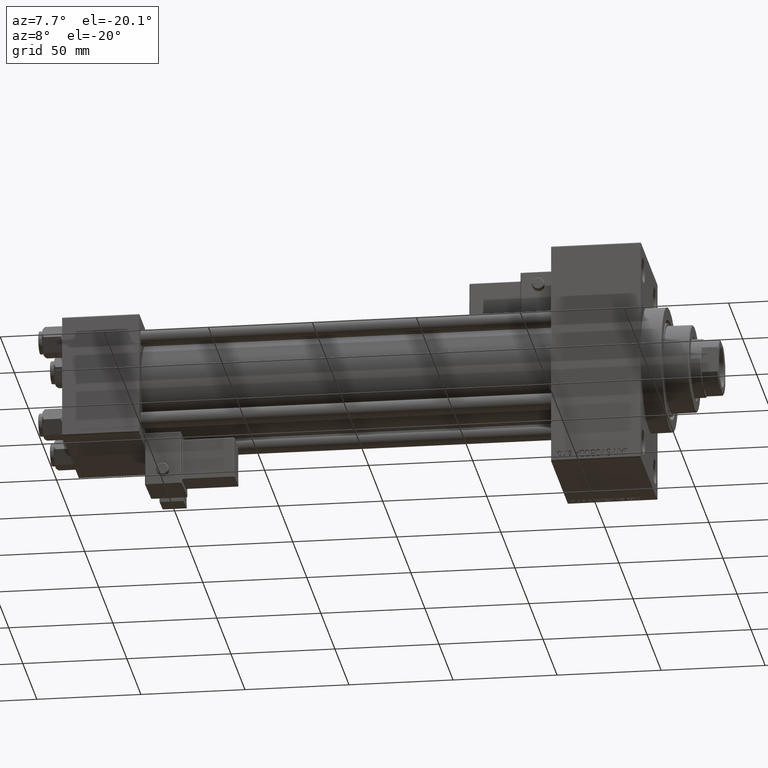
[diagram: clean part render]
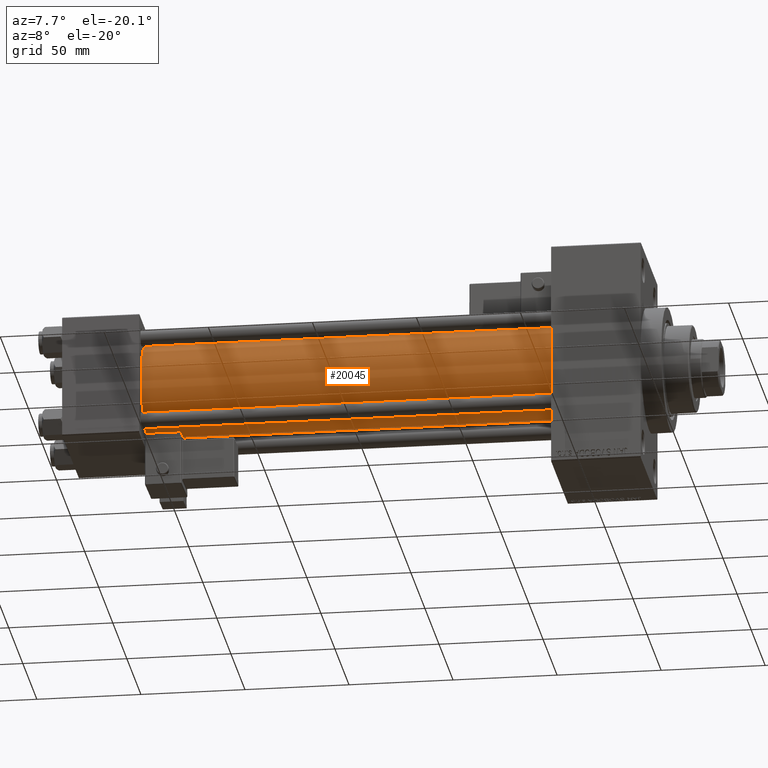
[diagram: same view with one face highlighted and labeled with its STEP entity id]
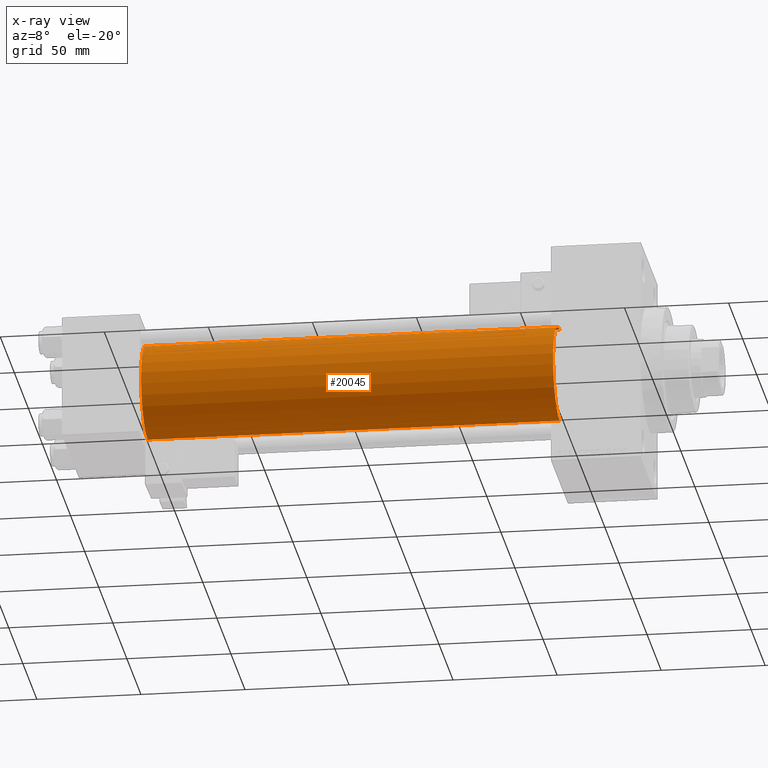
[diagram: x-ray of the same camera — body ghosted, the highlighted face saturated]
A machine part, auxiliary view. The second image highlights one B-rep face of the part: STEP entity #20045.
The next image is the same camera in x-ray: the body ghosted, the highlighted face saturated — about 0% of this face is hidden behind the body in this view.
In plain terms, the highlighted cylindrical surface (partial cylindrical patch) has radius 23 mm, axis along (-1, -0, -0).
Its self-contained STEP definition (entity closure, byte-faithful):
#1913 = DIRECTION ( 'NONE',  ( -1.000000000000000000, -0.000000000000000000, -0.000000000000000000 ) ) ;
#1985 = LINE ( 'NONE', #29154, #23073 ) ;
#2584 = DIRECTION ( 'NONE',  ( 1.000000000000000000, -0.000000000000000000, 0.000000000000000000 ) ) ;
#3617 = VERTEX_POINT ( 'NONE', #23966 ) ;
#5589 = ORIENTED_EDGE ( 'NONE', *, *, #18228, .T. ) ;
#5696 = FACE_OUTER_BOUND ( 'NONE', #41561, .T. ) ;
#12281 = AXIS2_PLACEMENT_3D ( 'NONE', #36365, #1913, #47923 ) ;
#13778 = CARTESIAN_POINT ( 'NONE',  ( 235.0000000000000284, -2.602085213965210642E-15, 0.000000000000000000 ) ) ;
#14313 = EDGE_CURVE ( 'NONE', #19381, #3617, #48928, .T. ) ;
#14524 = DIRECTION ( 'NONE',  ( 0.000000000000000000, 0.000000000000000000, -1.000000000000000000 ) ) ;
#18174 = CARTESIAN_POINT ( 'NONE',  ( 37.00000000000000711, -2.602085213965210642E-15, 0.000000000000000000 ) ) ;
#18228 = EDGE_CURVE ( 'NONE', #48585, #3617, #28329, .T. ) ;
#19381 = VERTEX_POINT ( 'NONE', #25713 ) ;
#20045 = ADVANCED_FACE ( 'NONE', ( #5696 ), #21015, .T. ) ;
#21015 = CYLINDRICAL_SURFACE ( 'NONE', #12281, 23.00000000000000000 ) ;
#22378 = CIRCLE ( 'NONE', #30425, 23.00000000000000000 ) ;
#23073 = VECTOR ( 'NONE', #44213, 1000.000000000000000 ) ;
#23966 = CARTESIAN_POINT ( 'NONE',  ( 37.00000000000000711, 2.146024240737016609E-16, -23.00000000000000000 ) ) ;
#25713 = CARTESIAN_POINT ( 'NONE',  ( 235.0000000000000284, 2.146024240737016609E-16, -23.00000000000000000 ) ) ;
#25720 = CARTESIAN_POINT ( 'NONE',  ( 37.00000000000000711, -2.602085213965210642E-15, 23.00000000000000000 ) ) ;
#26731 = VERTEX_POINT ( 'NONE', #33282 ) ;
#27871 = ORIENTED_EDGE ( 'NONE', *, *, #45326, .F. ) ;
#28329 = CIRCLE ( 'NONE', #37155, 23.00000000000000000 ) ;
#28353 = ORIENTED_EDGE ( 'NONE', *, *, #14313, .F. ) ;
#29154 = CARTESIAN_POINT ( 'NONE',  ( 235.0000000000000284, -2.602085213965210642E-15, 23.00000000000000000 ) ) ;
#30425 = AXIS2_PLACEMENT_3D ( 'NONE', #13778, #44185, #14524 ) ;
#33270 = DIRECTION ( 'NONE',  ( 0.000000000000000000, 0.000000000000000000, 1.000000000000000000 ) ) ;
#33282 = CARTESIAN_POINT ( 'NONE',  ( 235.0000000000000284, -2.602085213965210642E-15, 23.00000000000000000 ) ) ;
#34911 = ORIENTED_EDGE ( 'NONE', *, *, #42649, .T. ) ;
#36365 = CARTESIAN_POINT ( 'NONE',  ( 235.0000000000000284, -2.602085213965210642E-15, 0.000000000000000000 ) ) ;
#37155 = AXIS2_PLACEMENT_3D ( 'NONE', #18174, #2584, #33270 ) ;
#41561 = EDGE_LOOP ( 'NONE', ( #28353, #27871, #34911, #5589 ) ) ;
#42649 = EDGE_CURVE ( 'NONE', #26731, #48585, #1985, .T. ) ;
#44185 = DIRECTION ( 'NONE',  ( 1.000000000000000000, 0.000000000000000000, 0.000000000000000000 ) ) ;
#44213 = DIRECTION ( 'NONE',  ( -1.000000000000000000, -0.000000000000000000, -0.000000000000000000 ) ) ;
#44641 = DIRECTION ( 'NONE',  ( -1.000000000000000000, -0.000000000000000000, -0.000000000000000000 ) ) ;
#44890 = CARTESIAN_POINT ( 'NONE',  ( 235.0000000000000284, 2.146024240737016609E-16, -23.00000000000000000 ) ) ;
#45326 = EDGE_CURVE ( 'NONE', #26731, #19381, #22378, .T. ) ;
#45943 = VECTOR ( 'NONE', #44641, 1000.000000000000000 ) ;
#47923 = DIRECTION ( 'NONE',  ( 0.000000000000000000, 0.000000000000000000, 1.000000000000000000 ) ) ;
#48585 = VERTEX_POINT ( 'NONE', #25720 ) ;
#48928 = LINE ( 'NONE', #44890, #45943 ) ;